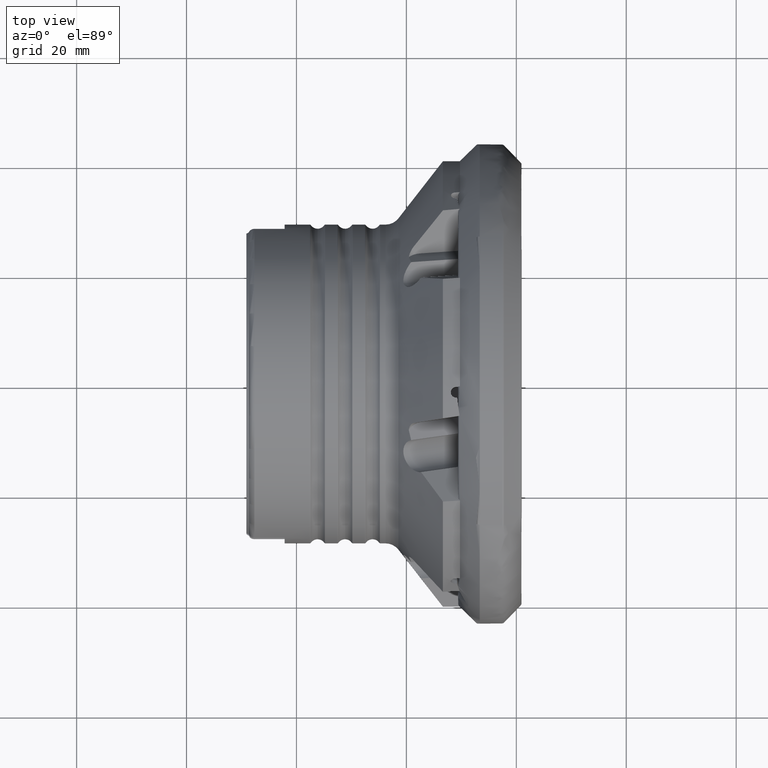
[diagram: clean part render]
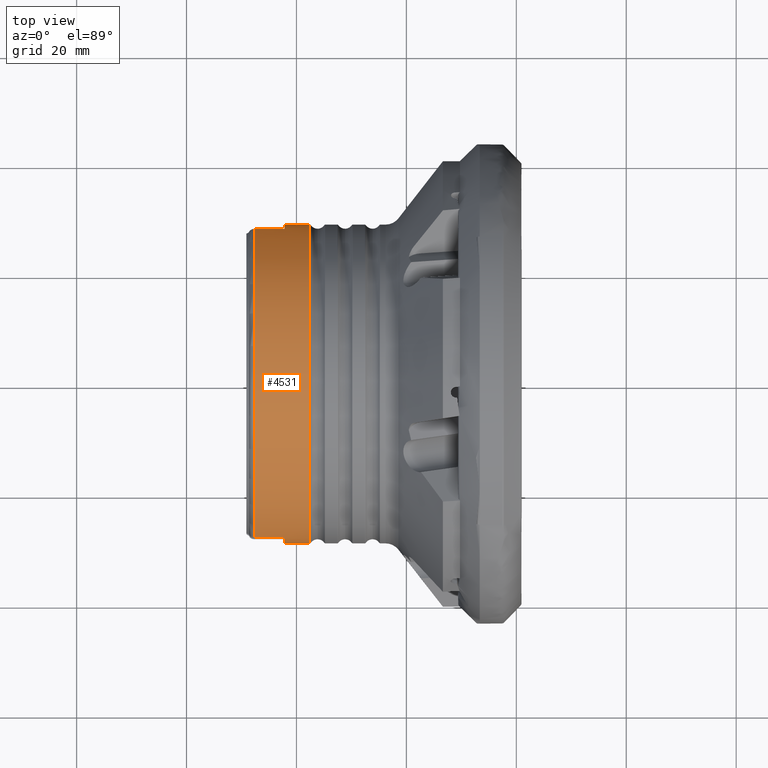
[diagram: same view with one face highlighted and labeled with its STEP entity id]
A machine part, top view. The second image highlights one B-rep face of the part: STEP entity #4531.
In plain terms, the highlighted cylindrical surface (partial cylindrical patch) has radius 29 mm, axis along (1, 0, -0).
Its self-contained STEP definition (entity closure, byte-faithful):
#93 = LINE ( 'NONE', #12642, #10878 ) ;
#109 = ORIENTED_EDGE ( 'NONE', *, *, #6959, .F. ) ;
#169 = VECTOR ( 'NONE', #2776, 1000.000000000000000 ) ;
#495 = CARTESIAN_POINT ( 'NONE',  ( -37.55978721798717100, -4.599747319316368000E-015, 0.0000000000000000000 ) ) ;
#555 = ORIENTED_EDGE ( 'NONE', *, *, #7245, .T. ) ;
#646 = LINE ( 'NONE', #7507, #11093 ) ;
#1088 = CARTESIAN_POINT ( 'NONE',  ( -47.64999999999999100, 28.10297166081742400, 7.157023391835974900 ) ) ;
#1282 = EDGE_CURVE ( 'NONE', #3818, #4592, #3154, .T. ) ;
#1584 = DIRECTION ( 'NONE',  ( -2.392722035830085900E-016, 1.000000000000000000, 0.0000000000000000000 ) ) ;
#1817 = CIRCLE ( 'NONE', #9439, 28.99999999999991100 ) ;
#1893 = FACE_OUTER_BOUND ( 'NONE', #9971, .T. ) ;
#1935 = CIRCLE ( 'NONE', #8121, 28.99999999999990800 ) ;
#2019 = ORIENTED_EDGE ( 'NONE', *, *, #7867, .F. ) ;
#2211 = VERTEX_POINT ( 'NONE', #10749 ) ;
#2275 = ORIENTED_EDGE ( 'NONE', *, *, #10170, .T. ) ;
#2523 = CARTESIAN_POINT ( 'NONE',  ( -42.14999999999999900, 28.10297166081742400, 7.157023391835968700 ) ) ;
#2776 = DIRECTION ( 'NONE',  ( 1.000000000000000000, 1.224646799147353700E-016, -0.0000000000000000000 ) ) ;
#2780 = ORIENTED_EDGE ( 'NONE', *, *, #1282, .F. ) ;
#3018 = DIRECTION ( 'NONE',  ( 1.000000000000000000, 1.224646799147353700E-016, -0.0000000000000000000 ) ) ;
#3154 = CIRCLE ( 'NONE', #5018, 28.99999999999990800 ) ;
#3297 = VERTEX_POINT ( 'NONE', #13154 ) ;
#3818 = VERTEX_POINT ( 'NONE', #2523 ) ;
#3956 = AXIS2_PLACEMENT_3D ( 'NONE', #8379, #8471, #8303 ) ;
#4018 = DIRECTION ( 'NONE',  ( -1.000000000000000000, -0.0000000000000000000, 0.0000000000000000000 ) ) ;
#4046 = CARTESIAN_POINT ( 'NONE',  ( -42.14999999999999900, -5.161886258406096100E-015, 0.0000000000000000000 ) ) ;
#4067 = DIRECTION ( 'NONE',  ( -1.000000000000000000, -0.0000000000000000000, 0.0000000000000000000 ) ) ;
#4088 = DIRECTION ( 'NONE',  ( 0.0000000000000000000, 4.440892098500626200E-015, -1.000000000000000000 ) ) ;
#4531 = ADVANCED_FACE ( 'NONE', ( #1893 ), #6902, .T. ) ;
#4592 = VERTEX_POINT ( 'NONE', #8026 ) ;
#4818 = CARTESIAN_POINT ( 'NONE',  ( 3.551475717527314200E-015, -28.99999999999990800, 3.551475717527313400E-015 ) ) ;
#4850 = VECTOR ( 'NONE', #10198, 1000.000000000000000 ) ;
#5018 = AXIS2_PLACEMENT_3D ( 'NONE', #4046, #4067, #4088 ) ;
#5242 = VERTEX_POINT ( 'NONE', #13157 ) ;
#5567 = DIRECTION ( 'NONE',  ( 1.000000000000000000, 1.224646799147353700E-016, -0.0000000000000000000 ) ) ;
#5585 = LINE ( 'NONE', #4818, #169 ) ;
#5758 = CIRCLE ( 'NONE', #9517, 28.99999999999991100 ) ;
#6791 = EDGE_CURVE ( 'NONE', #6891, #2211, #5758, .T. ) ;
#6891 = VERTEX_POINT ( 'NONE', #1088 ) ;
#6902 = CYLINDRICAL_SURFACE ( 'NONE', #3956, 28.99999999999990800 ) ;
#6959 = EDGE_CURVE ( 'NONE', #4592, #10660, #7776, .T. ) ;
#7245 = EDGE_CURVE ( 'NONE', #7943, #3297, #5585, .T. ) ;
#7383 = ORIENTED_EDGE ( 'NONE', *, *, #10524, .F. ) ;
#7507 = CARTESIAN_POINT ( 'NONE',  ( -3.441621429094886100E-015, 28.10297166081743100, 7.157023391835973100 ) ) ;
#7548 = DIRECTION ( 'NONE',  ( -1.000000000000000000, -1.224646799147353700E-016, 0.0000000000000000000 ) ) ;
#7565 = DIRECTION ( 'NONE',  ( 1.000000000000000000, 1.224646799147353700E-016, -0.0000000000000000000 ) ) ;
#7604 = CARTESIAN_POINT ( 'NONE',  ( -42.14999999999999900, -28.99999999999991100, 3.551475717527313400E-015 ) ) ;
#7776 = LINE ( 'NONE', #8125, #4850 ) ;
#7867 = EDGE_CURVE ( 'NONE', #10660, #3297, #1817, .T. ) ;
#7943 = VERTEX_POINT ( 'NONE', #7604 ) ;
#8026 = CARTESIAN_POINT ( 'NONE',  ( -42.14999999999999900, 28.99999999999990800, 0.0000000000000000000 ) ) ;
#8121 = AXIS2_PLACEMENT_3D ( 'NONE', #9950, #4018, #11011 ) ;
#8125 = CARTESIAN_POINT ( 'NONE',  ( -3.551475717527314200E-015, 28.99999999999990800, 0.0000000000000000000 ) ) ;
#8134 = CARTESIAN_POINT ( 'NONE',  ( -37.55978721798717900, 28.99999999999990800, 0.0000000000000000000 ) ) ;
#8303 = DIRECTION ( 'NONE',  ( -1.224646799147353700E-016, 1.000000000000000000, 0.0000000000000000000 ) ) ;
#8379 = CARTESIAN_POINT ( 'NONE',  ( 0.0000000000000000000, 0.0000000000000000000, 0.0000000000000000000 ) ) ;
#8433 = EDGE_CURVE ( 'NONE', #3818, #6891, #646, .T. ) ;
#8471 = DIRECTION ( 'NONE',  ( 1.000000000000000000, 1.224646799147353700E-016, -0.0000000000000000000 ) ) ;
#8969 = CARTESIAN_POINT ( 'NONE',  ( -47.64999999999999100, -5.835441997937139400E-015, 0.0000000000000000000 ) ) ;
#9439 = AXIS2_PLACEMENT_3D ( 'NONE', #495, #7565, #1584 ) ;
#9517 = AXIS2_PLACEMENT_3D ( 'NONE', #8969, #3018, #9995 ) ;
#9950 = CARTESIAN_POINT ( 'NONE',  ( -42.14999999999999900, -5.161886258406096100E-015, 0.0000000000000000000 ) ) ;
#9971 = EDGE_LOOP ( 'NONE', ( #7383, #555, #2019, #109, #2780, #10238, #12663, #2275 ) ) ;
#9995 = DIRECTION ( 'NONE',  ( -2.392722035830085900E-016, 1.000000000000000000, 0.0000000000000000000 ) ) ;
#10170 = EDGE_CURVE ( 'NONE', #2211, #5242, #93, .T. ) ;
#10198 = DIRECTION ( 'NONE',  ( 1.000000000000000000, 1.224646799147353700E-016, -0.0000000000000000000 ) ) ;
#10238 = ORIENTED_EDGE ( 'NONE', *, *, #8433, .T. ) ;
#10524 = EDGE_CURVE ( 'NONE', #7943, #5242, #1935, .T. ) ;
#10660 = VERTEX_POINT ( 'NONE', #8134 ) ;
#10749 = CARTESIAN_POINT ( 'NONE',  ( -47.64999999999999100, -28.10297166081743800, 7.157023391835968700 ) ) ;
#10878 = VECTOR ( 'NONE', #5567, 1000.000000000000000 ) ;
#11011 = DIRECTION ( 'NONE',  ( 0.0000000000000000000, 0.0000000000000000000, -1.000000000000000000 ) ) ;
#11093 = VECTOR ( 'NONE', #7548, 1000.000000000000000 ) ;
#12642 = CARTESIAN_POINT ( 'NONE',  ( 3.441621429094885700E-015, -28.10297166081743100, 7.157023391835968700 ) ) ;
#12663 = ORIENTED_EDGE ( 'NONE', *, *, #6791, .T. ) ;
#13154 = CARTESIAN_POINT ( 'NONE',  ( -37.55978721798716400, -28.99999999999991500, 3.551475717527313400E-015 ) ) ;
#13157 = CARTESIAN_POINT ( 'NONE',  ( -42.14999999999999900, -28.10297166081743100, 7.157023391835966000 ) ) ;